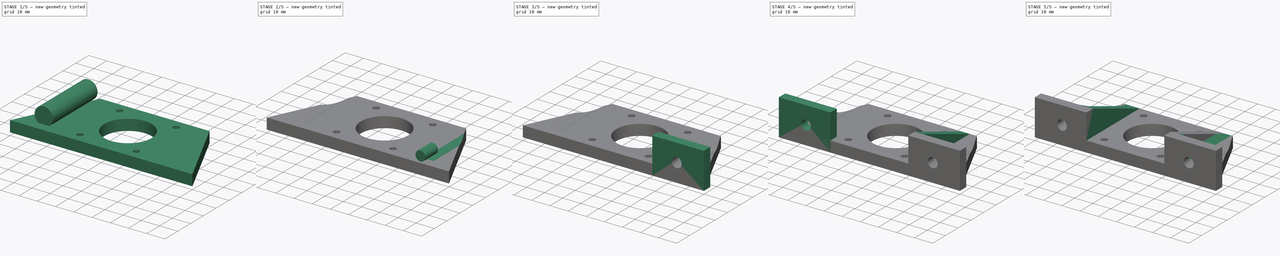
[diagram: build sequence overview — one tinted view per stage of 5, left to right]
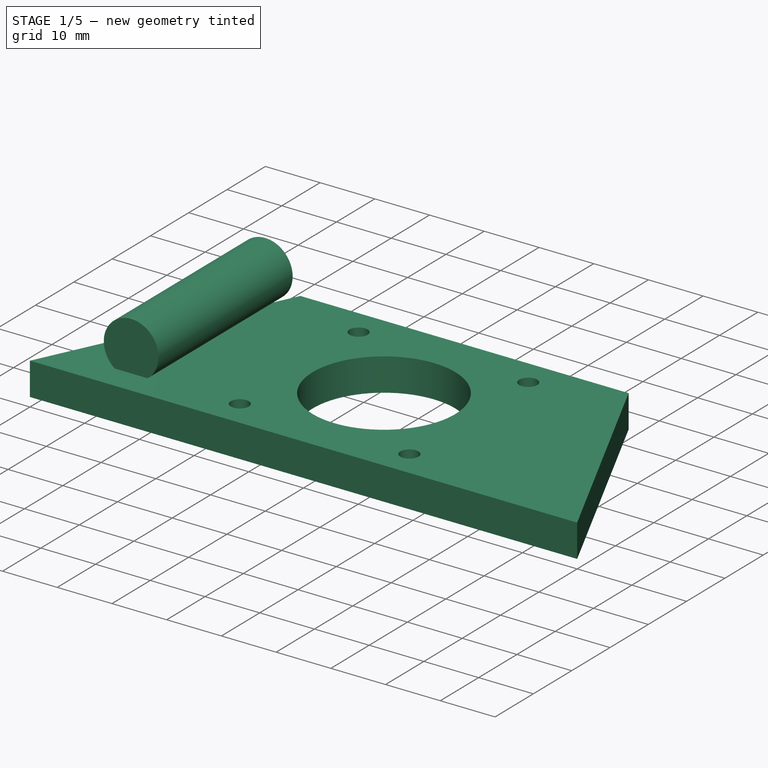
[diagram: stage 1 of 5 — iso view after this stage's code; geometry added in this stage tinted green]
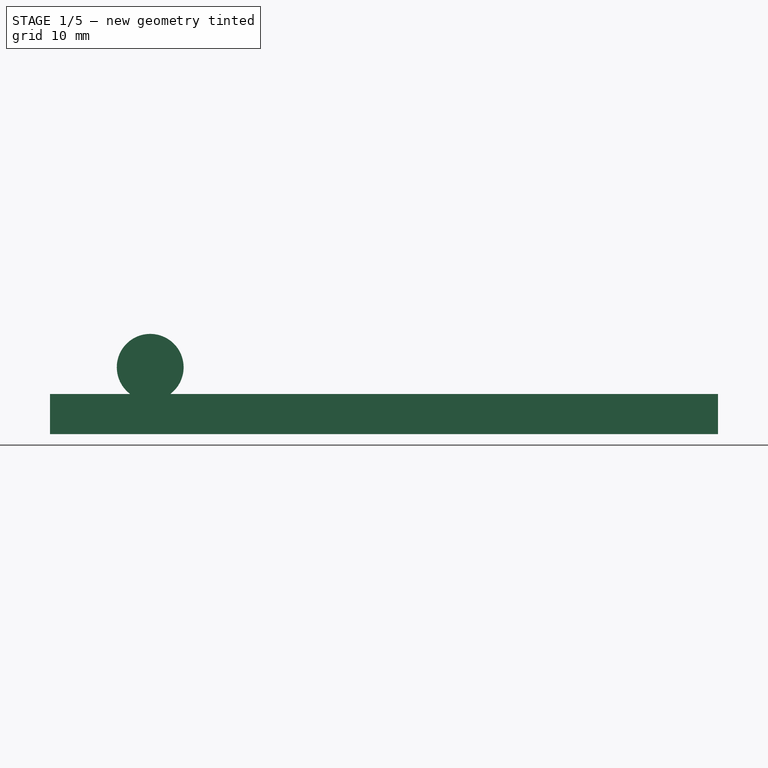
[diagram: stage 1 of 5 — front view after this stage's code; geometry added in this stage tinted green]
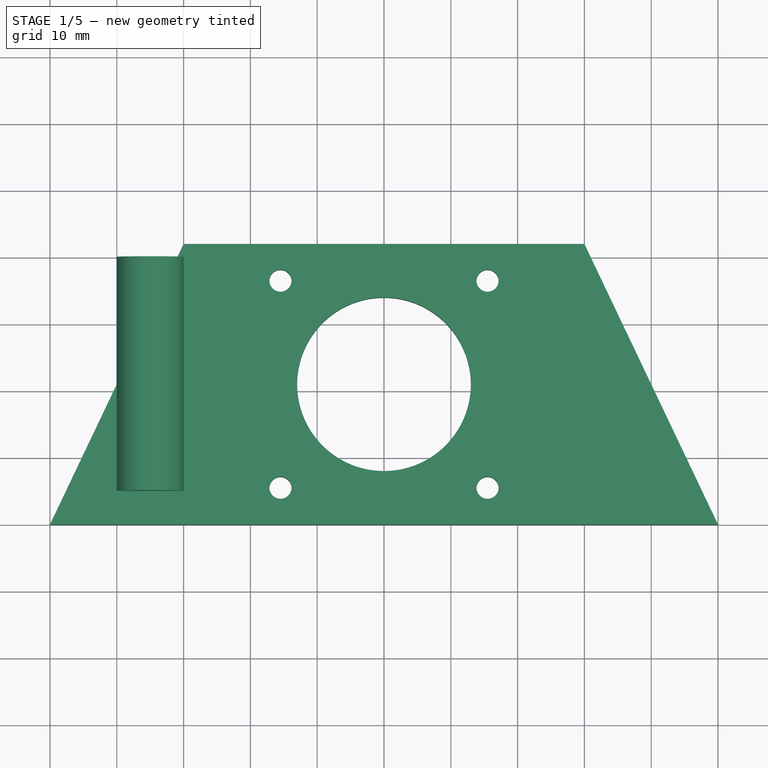
[diagram: stage 1 of 5 — top view after this stage's code; geometry added in this stage tinted green]
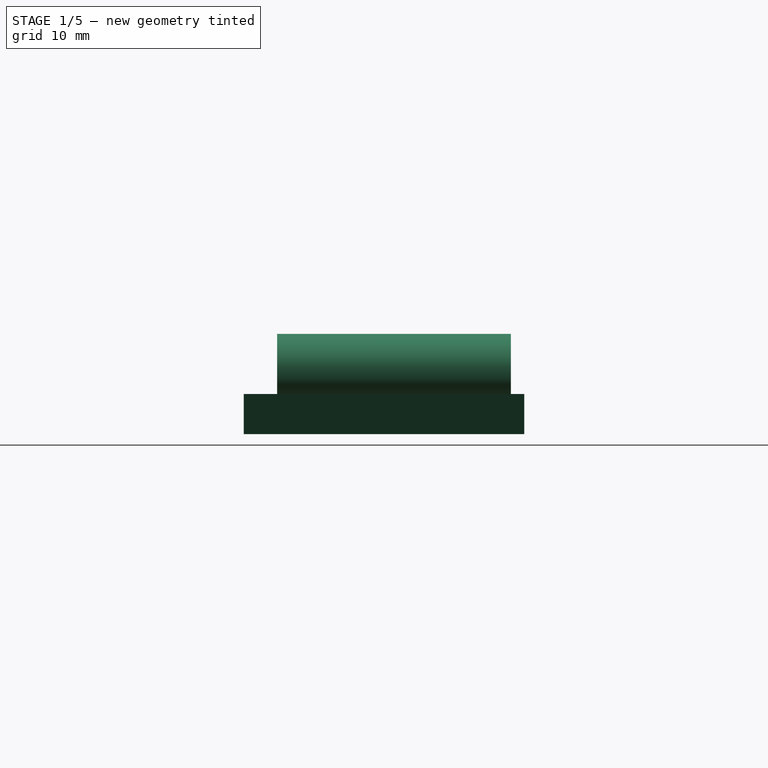
[diagram: stage 1 of 5 — right view after this stage's code; geometry added in this stage tinted green]
FCSTD DOCUMENT  (FreeCAD 0.16R6703 (Git))
Label: nema13_holder_v02
License: All rights reserved
LicenseURL: http://en.wikipedia.org/wiki/All_rights_reserved
objects: Part::FeaturePython×4, Sketcher::SketchObject×3, Part::Extrusion×3, Part::Cut×3, Part::MultiFuse×2, Part::Box×1, Part::Cylinder×1, Part::Chamfer×1
note: 18 computed .brp shape members not serialized (recipe doc carries the construction recipe); baked Part::Feature solids carry a one-line shape summary decoded from their .brp

FEATURE [Part::Cylinder] Cylinder  label="hueco_cabeza_tornillo"
  Angle = 360
  Height = 35
  Placement = pos=(35,5,10) rot=(-1,0,0;1.5708rad)
  Radius = 5
FEATURE [Part::FeaturePython] Clone003  label="hueco_cabeza_tornillo_2"  # Draft clone (typed FeaturePython)
  Objects = -> [Cylinder]
  Placement = pos=(-35,5,10) rot=(-1,0,0;1.5708rad)
  Scale = (1,1,1)
FEATURE [Part::Extrusion] Extrude  label="base_hueco_motor"
  Base = -> Sketch
  Dir = (0,0,6)
  Solid = true
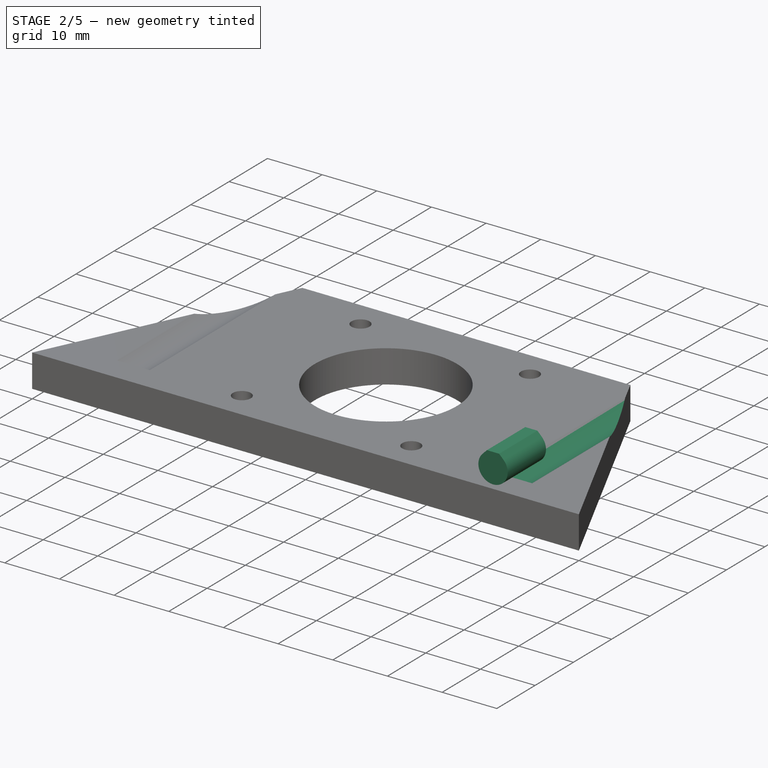
[diagram: stage 2 of 5 — iso view after this stage's code; geometry added in this stage tinted green]
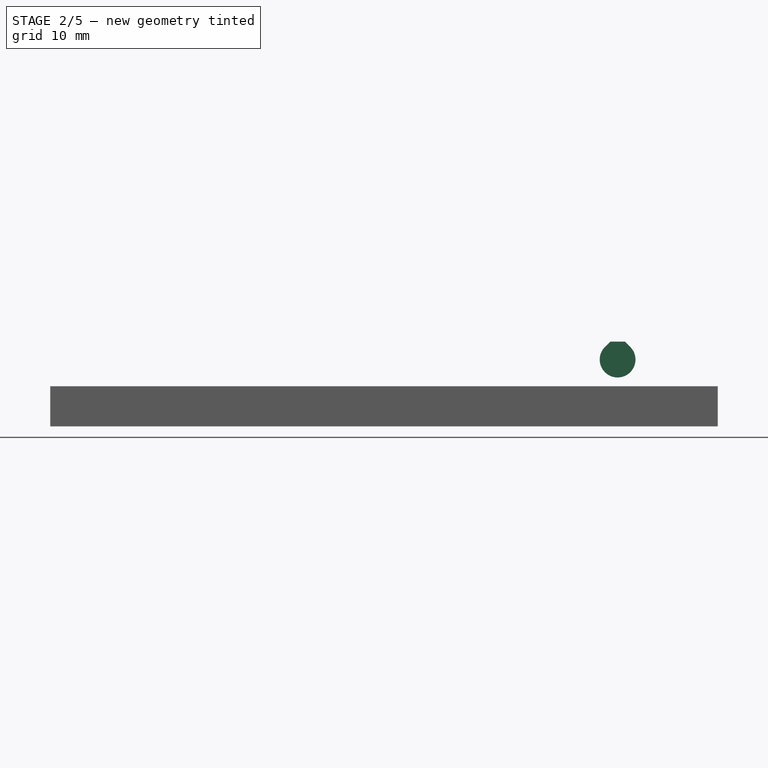
[diagram: stage 2 of 5 — front view after this stage's code; geometry added in this stage tinted green]
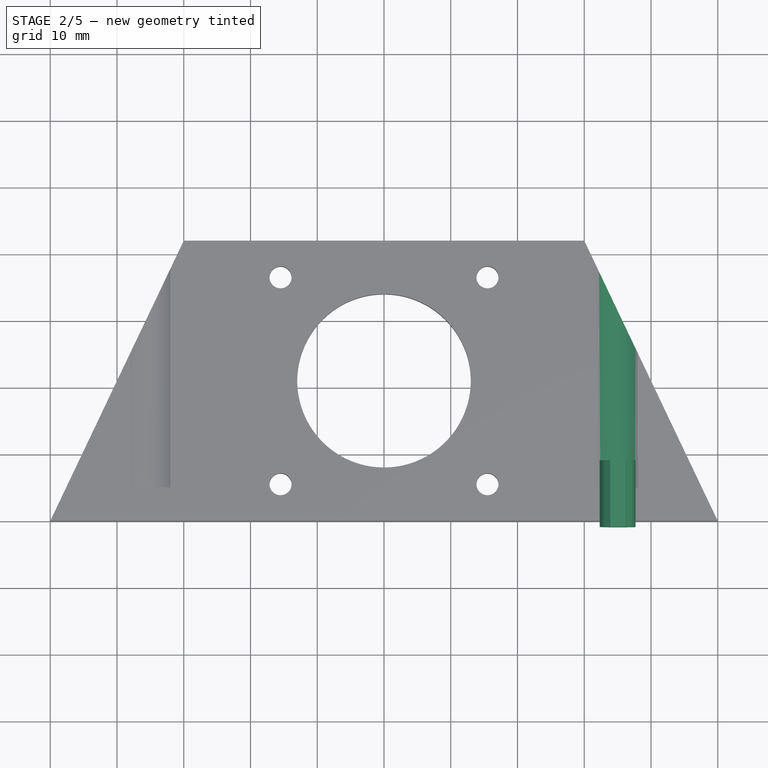
[diagram: stage 2 of 5 — top view after this stage's code; geometry added in this stage tinted green]
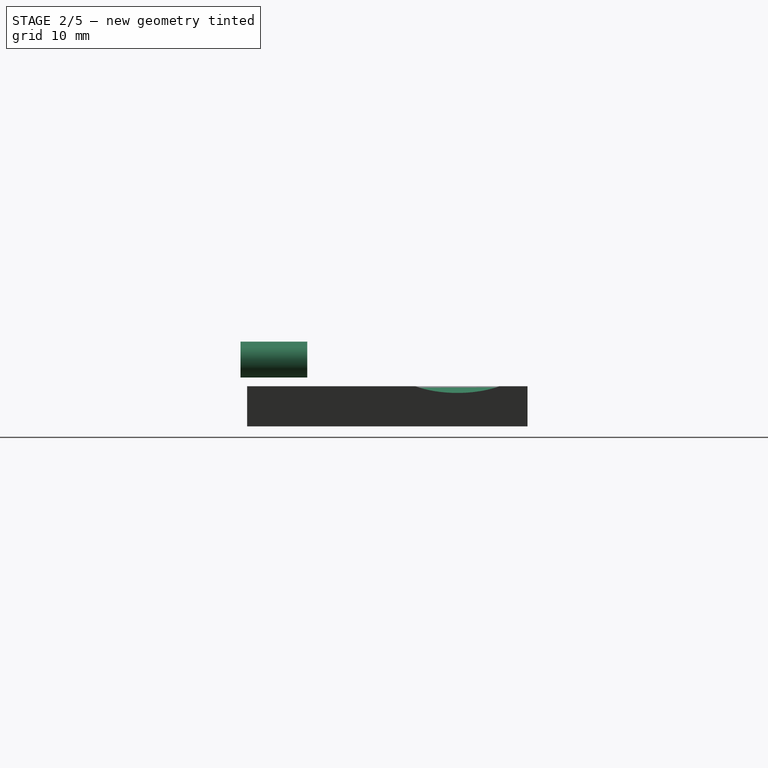
[diagram: stage 2 of 5 — right view after this stage's code; geometry added in this stage tinted green]
FEATURE [Sketcher::SketchObject] Sketch003  label="M5_repraphole"
  Placement = pos=(0,0,10) rot=(1,0,0;1.5708rad)
  sketch-geometry (4):
    g0: ArcOfCircle CenterX=0 CenterY=0 CenterZ=0 NormalX=0 NormalY=0 NormalZ=1 Radius=2.68 StartAngle=2.3562 EndAngle=7.06858
    g1: LineSegment StartX=-1.89506 StartY=1.89504 StartZ=0 EndX=-1.11009 EndY=2.68 EndZ=0
    g2: LineSegment StartX=1.11009 StartY=2.68 StartZ=0 EndX=1.89506 EndY=1.89504 EndZ=0
    g3: LineSegment StartX=-1.11009 StartY=2.68 StartZ=0 EndX=1.11009 EndY=2.68 EndZ=0
  constraints (12):
    c: Coincident(g0,g-1)
    c: Radius(g0) = 2.68  'M5'
    c: Angle(g-1,g1) = 0.785398
    c: Horizontal(g3)
    c: Coincident(g3,g1)
    c: Coincident(g3,g2)
    c: Coincident(g0,g1)
    c: Coincident(g0,g2)
    c: DistanceY(g-1,g1) = 2.68  'M5radio'
    c: Angle(g2,g-1) = 0.785398
    c: Tangent(g2,g0)
    c: Tangent(g1,g0)
FEATURE [Part::Extrusion] Extrude002  label="M5_repraphole_extrusion"
  Base = -> Sketch003
  Dir = (0,10,0)
  Placement = pos=(35,-1,0) rot=(0,0,1;0rad)
  Solid = true
FEATURE [Part::MultiFuse] Fusion  label="huecos_cabeza_tornillo"
  Shapes = -> [Clone003,Cylinder]
FEATURE [Part::Cut] Cut002  label="base_hueco_motor_con_cabeza_tornillo"
  Base = -> Extrude
  Tool = -> Fusion
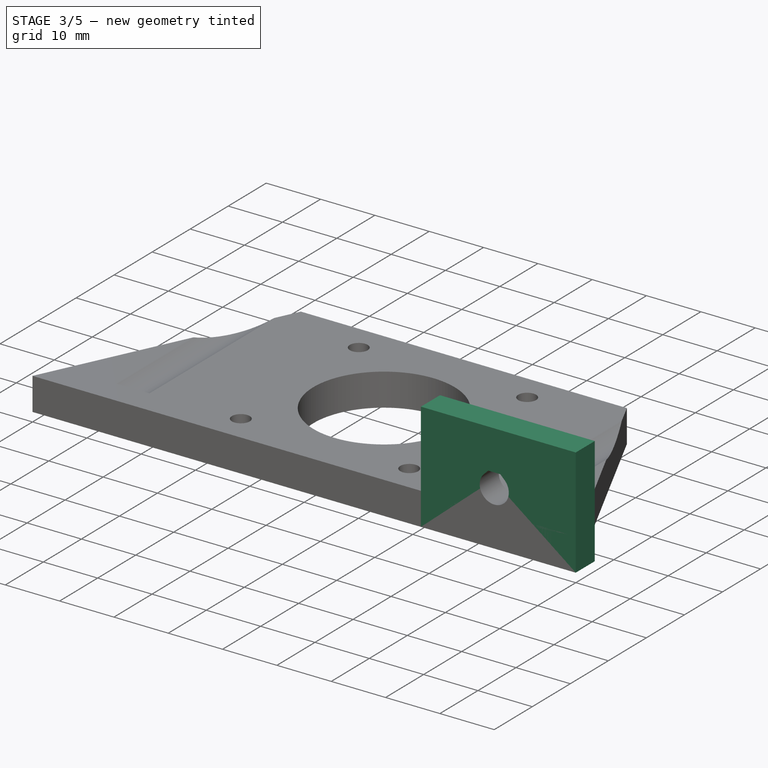
[diagram: stage 3 of 5 — iso view after this stage's code; geometry added in this stage tinted green]
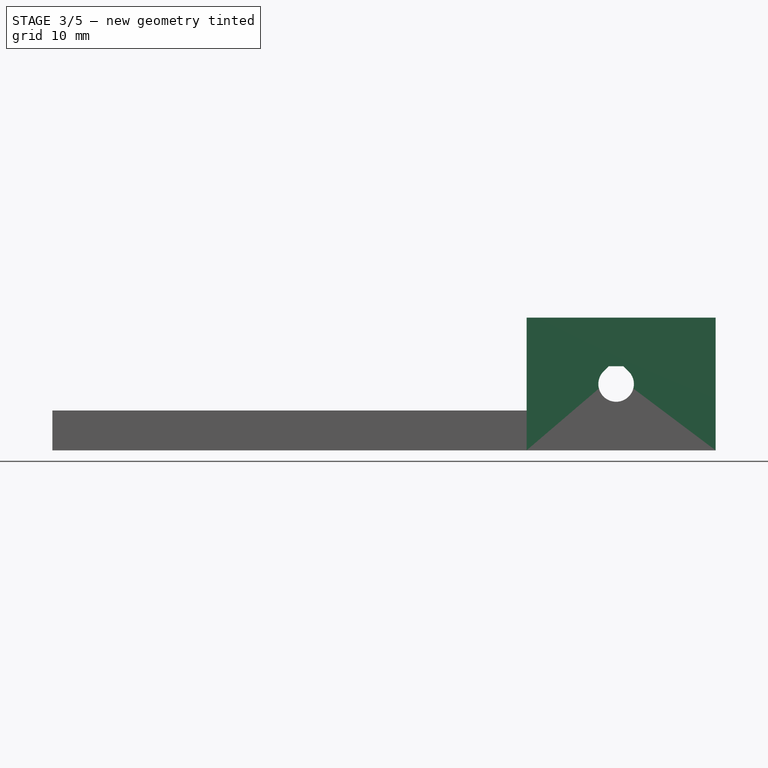
[diagram: stage 3 of 5 — front view after this stage's code; geometry added in this stage tinted green]
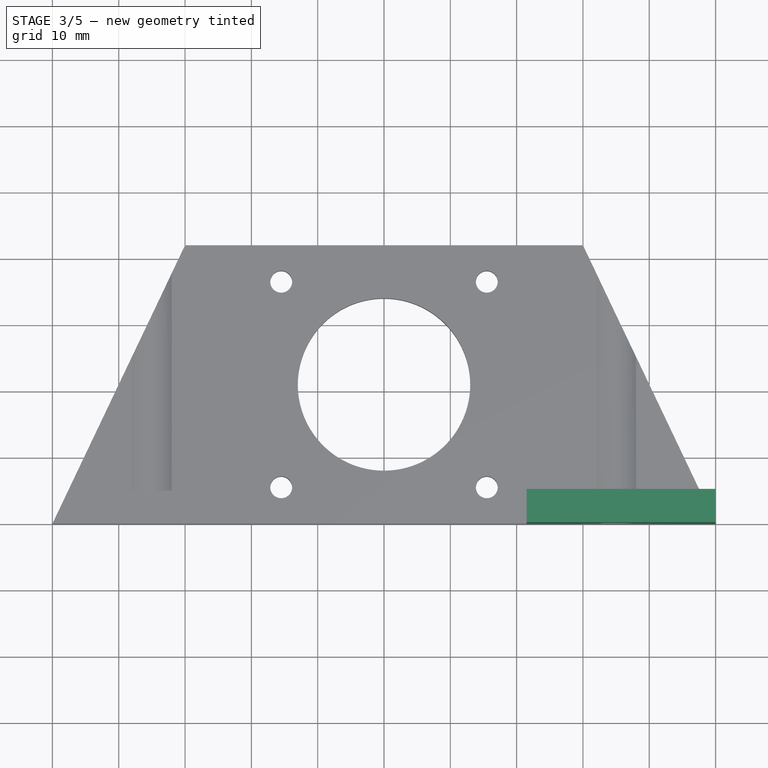
[diagram: stage 3 of 5 — top view after this stage's code; geometry added in this stage tinted green]
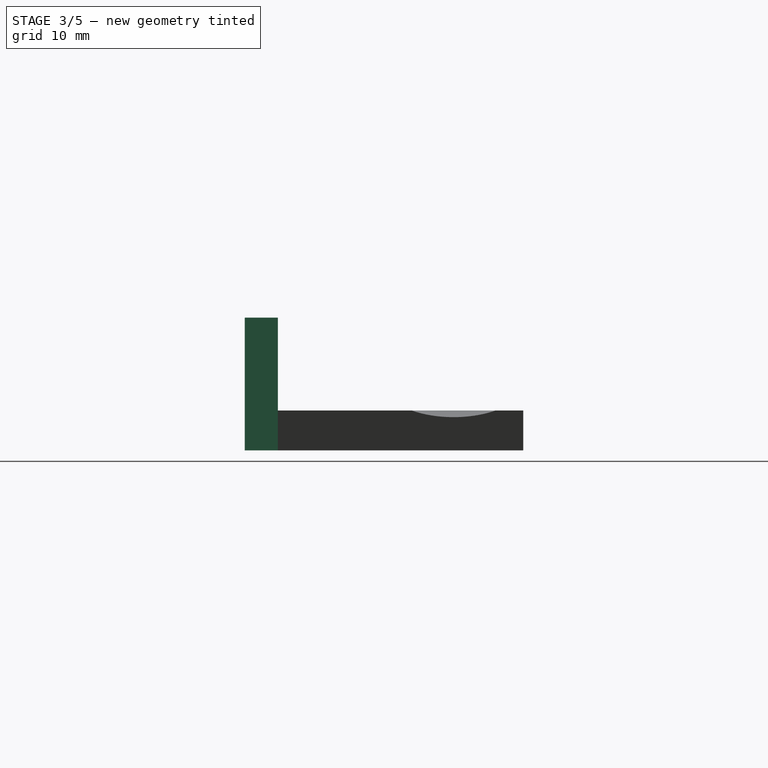
[diagram: stage 3 of 5 — right view after this stage's code; geometry added in this stage tinted green]
FEATURE [Sketcher::SketchObject] Sketch  label="base_hueco_motor_sketch"
  sketch-geometry (10):
    g0: LineSegment StartX=-30 StartY=42 StartZ=0 EndX=30 EndY=42 EndZ=0
    g1: LineSegment StartX=30 StartY=42 StartZ=0 EndX=50 EndY=0 EndZ=0
    g2: LineSegment StartX=50 StartY=0 StartZ=0 EndX=-50 EndY=0 EndZ=0
    g3: LineSegment StartX=-50 StartY=0 StartZ=0 EndX=-30 EndY=42 EndZ=0
    g4: Circle CenterX=-15.5 CenterY=36.5 CenterZ=0 NormalX=0 NormalY=0 NormalZ=1 Radius=1.65
    g5: Circle CenterX=15.5 CenterY=36.5 CenterZ=0 NormalX=0 NormalY=0 NormalZ=1 Radius=1.65
    g6: Circle CenterX=-15.5 CenterY=5.5 CenterZ=0 NormalX=0 NormalY=0 NormalZ=1 Radius=1.65
    g7: Circle CenterX=15.5 CenterY=5.5 CenterZ=0 NormalX=0 NormalY=0 NormalZ=1 Radius=1.65
    g8: GeomPoint [constr] X=0 Y=21 Z=0
    g9: Circle CenterX=0 CenterY=21 CenterZ=0 NormalX=0 NormalY=0 NormalZ=1 Radius=13
  constraints (28):
    c: Horizontal(g0)
    c: Coincident(g0,g1)
    c: Coincident(g1,g2)
    c: Horizontal(g2)
    c: Coincident(g2,g3)
    c: Coincident(g3,g0)
    c: DistanceY(g-1,g2) = 0
    c: DistanceX(g0,g-1) = 30
    c: DistanceX(g-1,g0) = 30
    c: DistanceX(g-1,g1) = 50
    c: DistanceX(g2,g-1) = 50
    c: DistanceY(g-1,g0) = 42
    c: Radius(g4) = 1.65  'M3'
    c: Equal(g4,g5)
    c: DistanceY(g4,g5) = 0
    c: DistanceX(g4,g5) = 31
    c: Equal(g4,g6)
    c: Equal(g7,g4)
    c: DistanceY(g6,g7) = 0
    c: DistanceX(g5,g7) = 0
    c: DistanceX(g6,g4) = 0
    c: DistanceY(g7,g5) = 31
    c: DistanceY(g-1,g8) = 21  'centro'
    c: DistanceX(g8,g-1) = 0
    c: DistanceX(g-1,g5) = 15.5
    c: DistanceY(g8,g5) = 15.5
    c: Coincident(g9,g8)
    c: Radius(g9) = 13
FEATURE [Part::Box] Box  label="soporte_vertical"
  Height = 20
  Length = 28.5
  Placement = pos=(-50,0,0) rot=(0,0,1;0rad)
  Width = 5
FEATURE [Part::FeaturePython] Clone  label="soporte_vertical_2"  # Draft clone (typed FeaturePython)
  Objects = -> [Box]
  Placement = pos=(50,5,0) rot=(0,0,1;3.14159rad)
  Scale = (1,1,1)
FEATURE [Part::Cut] Cut001  label="soporte_vertical_contaladro_1"
  Base = -> Clone
  Tool = -> Extrude002
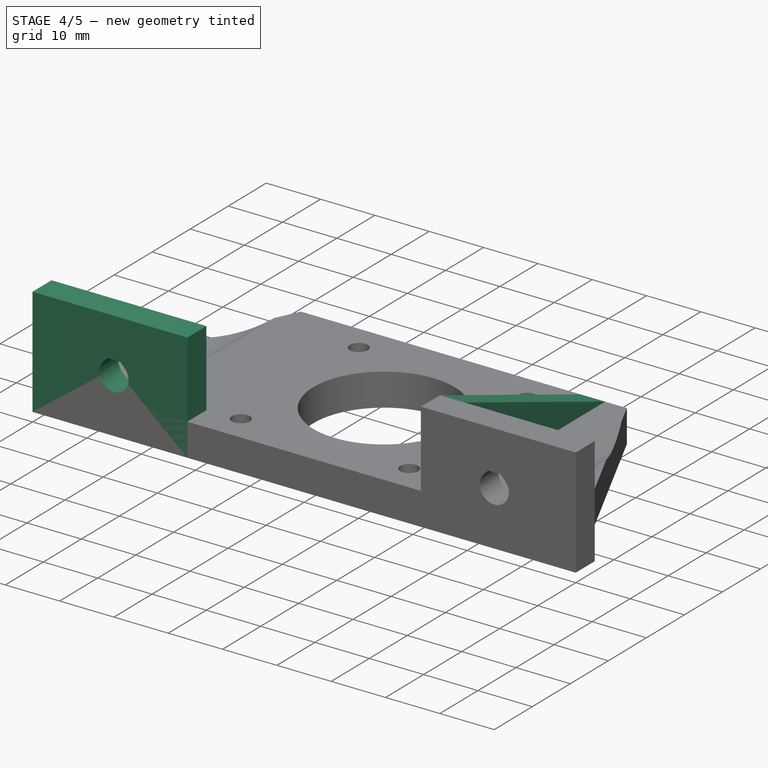
[diagram: stage 4 of 5 — iso view after this stage's code; geometry added in this stage tinted green]
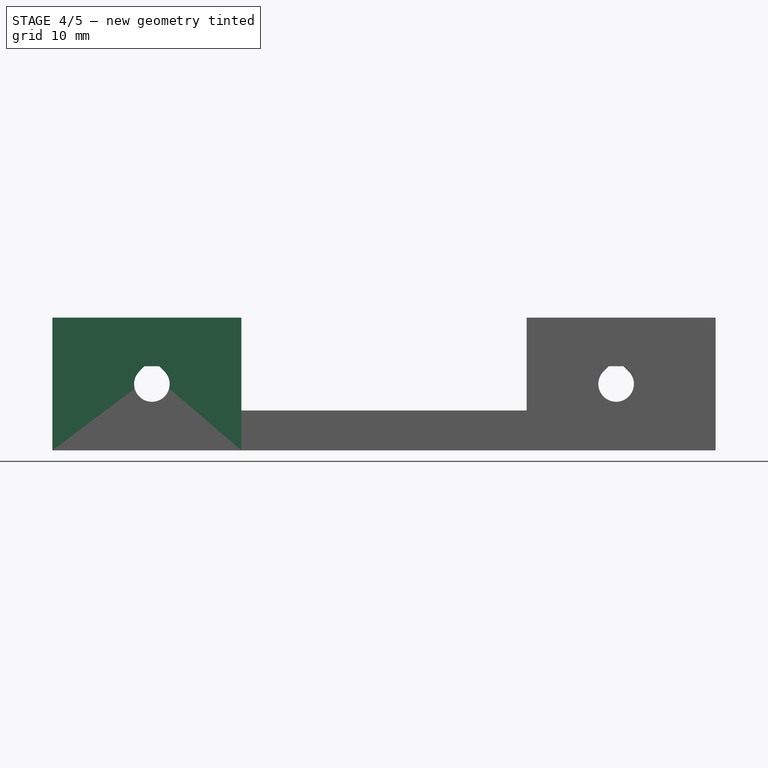
[diagram: stage 4 of 5 — front view after this stage's code; geometry added in this stage tinted green]
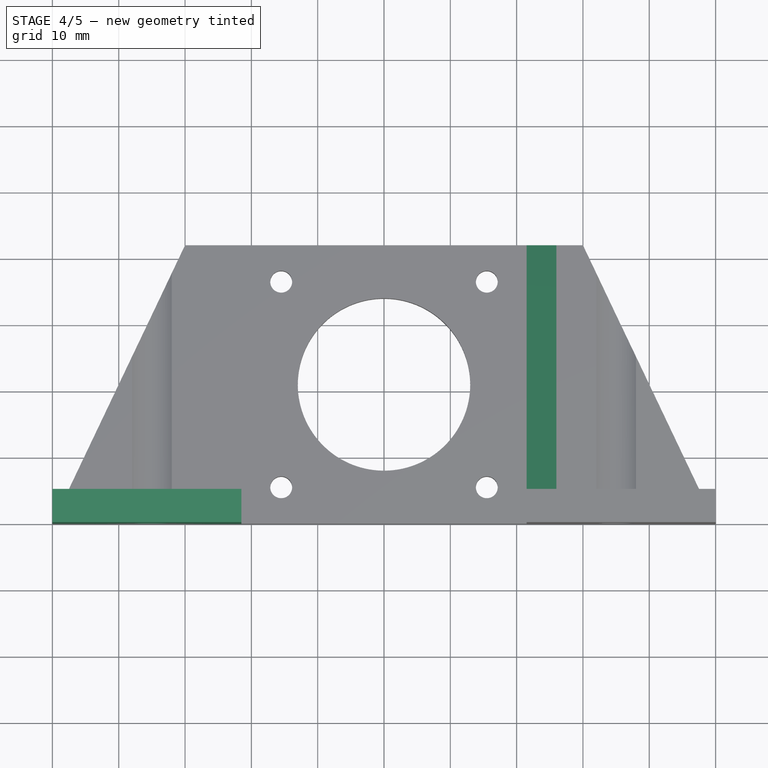
[diagram: stage 4 of 5 — top view after this stage's code; geometry added in this stage tinted green]
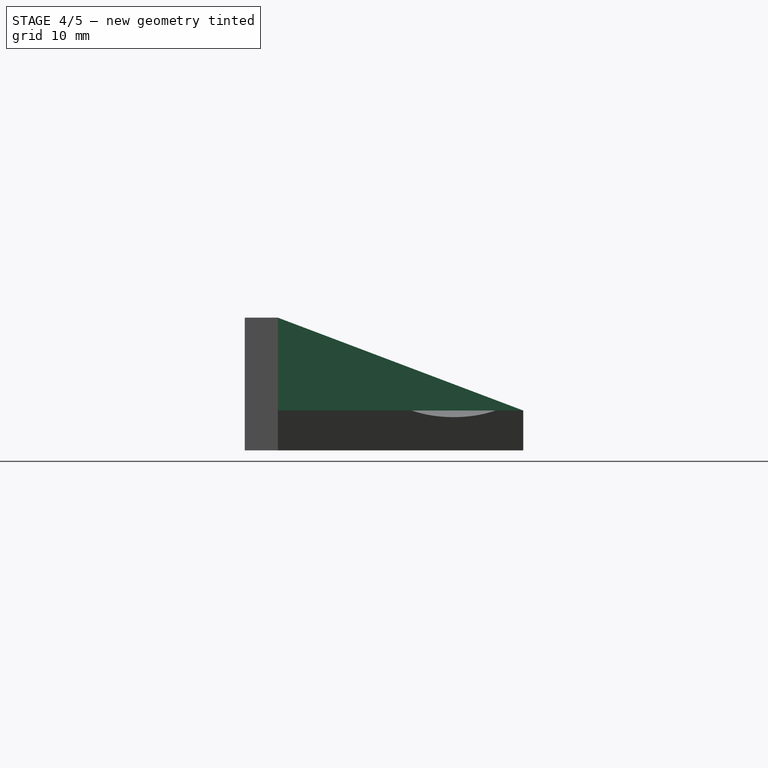
[diagram: stage 4 of 5 — right view after this stage's code; geometry added in this stage tinted green]
FEATURE [Sketcher::SketchObject] Sketch002  label="sketch_refuerzo_triangular"
  Placement = pos=(0,0,0) rot=(0.57735,0.57735,0.57735;2.0944rad)
  sketch-geometry (3):
    g0: LineSegment StartX=5 StartY=20 StartZ=0 EndX=42 EndY=6 EndZ=0
    g1: LineSegment StartX=42 StartY=6 StartZ=0 EndX=5 EndY=6 EndZ=0
    g2: LineSegment StartX=5 StartY=6 StartZ=0 EndX=5 EndY=20 EndZ=0
  constraints (9):
    c: Coincident(g0,g1)
    c: Horizontal(g1)
    c: Coincident(g1,g2)
    c: Coincident(g0,g2)
    c: Vertical(g2)
    c: DistanceX(g1,g0) = 37
    c: DistanceX(g-1,g1) = 5
    c: DistanceY(g-1,g1) = 6
    c: DistanceY(g-1,g0) = 20
FEATURE [Part::Extrusion] Extrude001  label="refuerzo_triangular"
  Base = -> Sketch002
  Dir = (4.5,0,0)
  Placement = pos=(21.5,0,0) rot=(0,0,1;0rad)
  Solid = true
FEATURE [Part::FeaturePython] Clone002  label="M5_repraphole_extrusion_2"  # Draft clone (typed FeaturePython)
  Objects = -> [Extrude002]
  Placement = pos=(-35,-1,0) rot=(0,0,1;0rad)
  Scale = (1,1,1)
FEATURE [Part::Cut] Cut  label="soporte_vertical_contaladro_2"
  Base = -> Box
  Tool = -> Clone002
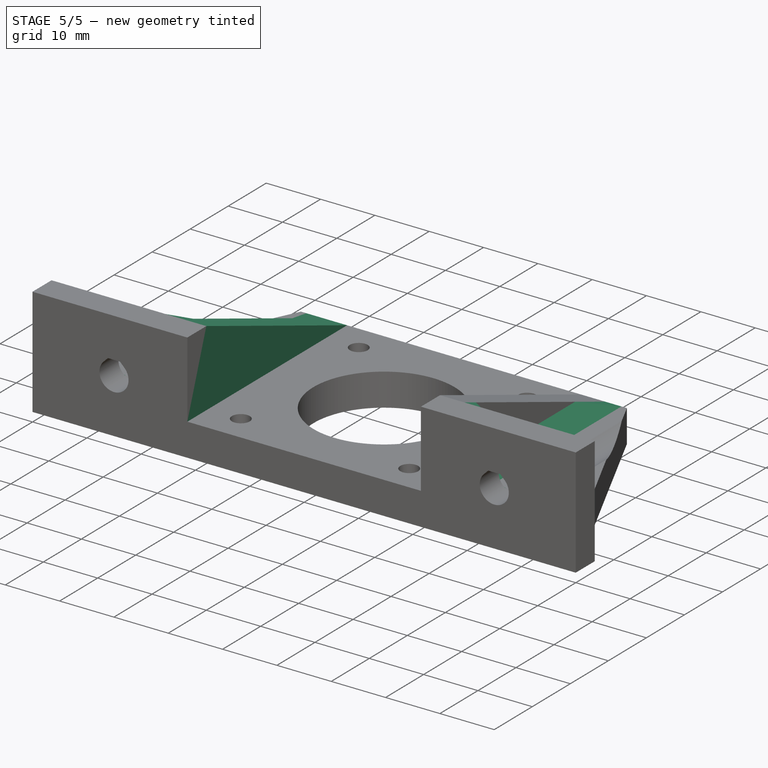
[diagram: stage 5 of 5 — iso view after this stage's code; geometry added in this stage tinted green]
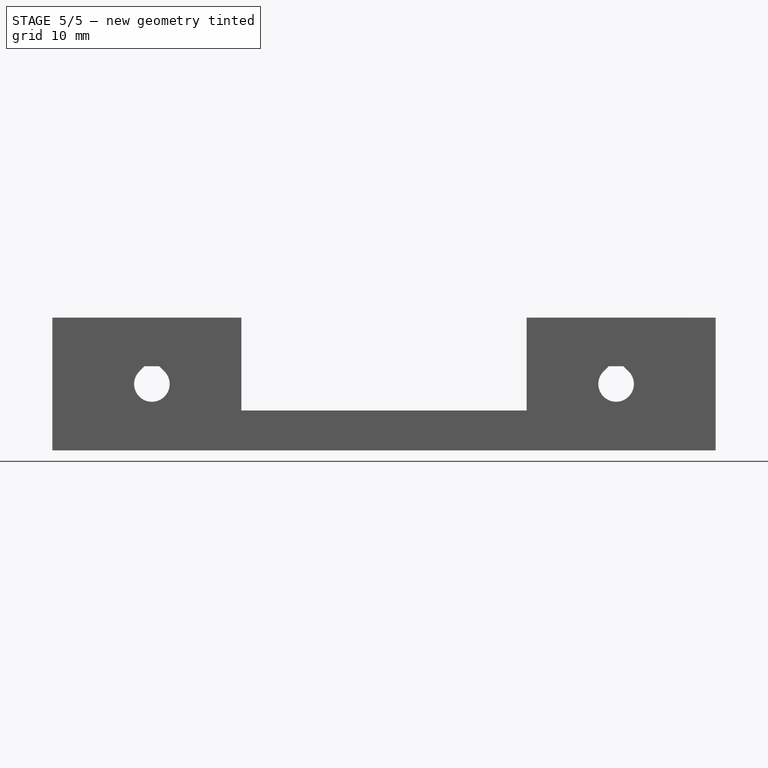
[diagram: stage 5 of 5 — front view after this stage's code; geometry added in this stage tinted green]
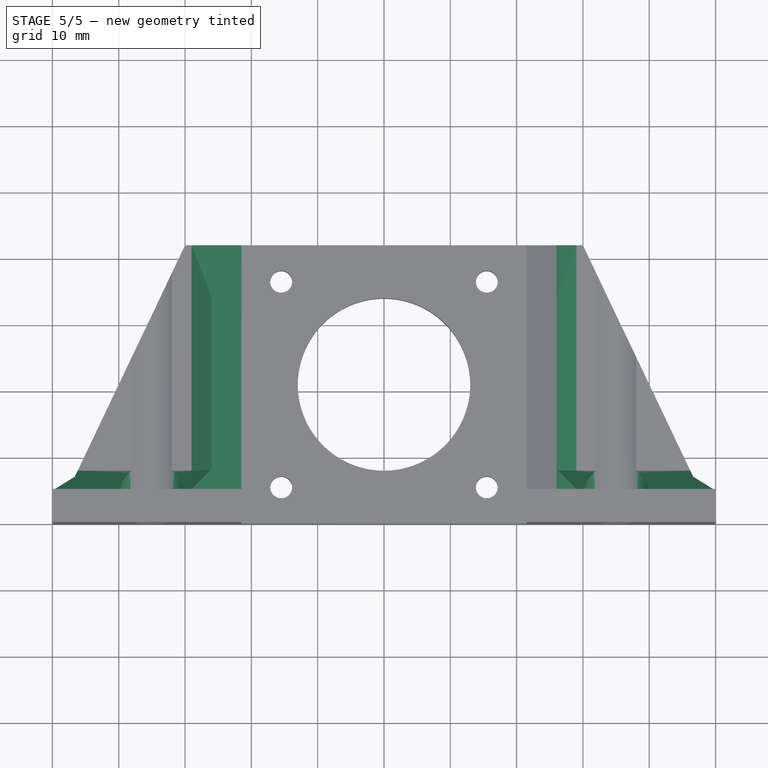
[diagram: stage 5 of 5 — top view after this stage's code; geometry added in this stage tinted green]
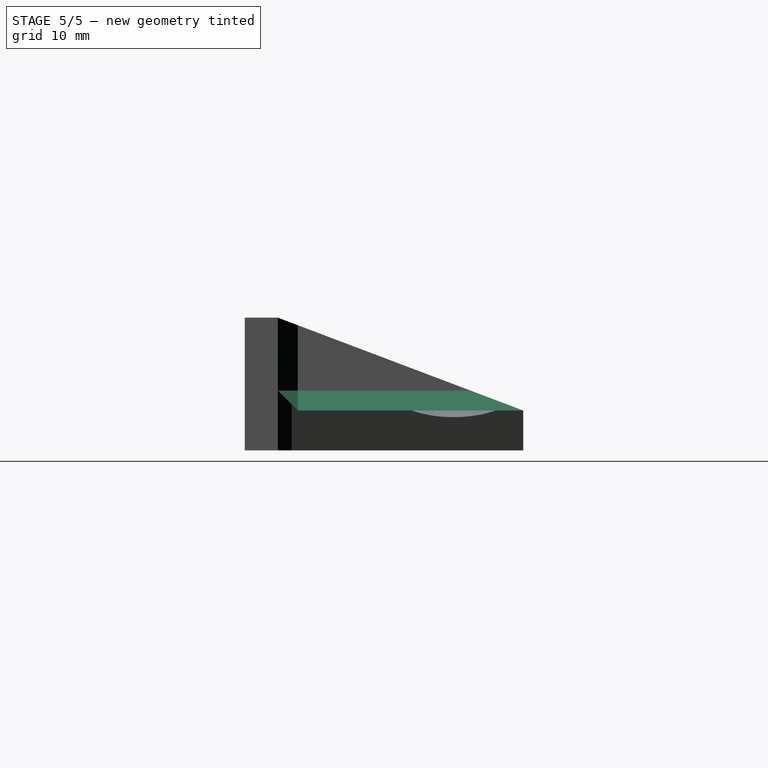
[diagram: stage 5 of 5 — right view after this stage's code; geometry added in this stage tinted green]
FEATURE [Part::FeaturePython] Clone001  label="refuerzo_triangular_2"  # Draft clone (typed FeaturePython)
  Objects = -> [Extrude001]
  Placement = pos=(-26,0,0) rot=(0,0,1;0rad)
  Scale = (1,1,1)
FEATURE [Part::MultiFuse] Fusion001  label="nema17_holder"
  Shapes = -> [Extrude001,Cut,Cut001,Cut002,Clone001]
FEATURE [Part::Chamfer] Chamfer  label="nema17_holder_chaflan"
  Base = -> Fusion001
  Edges = 10 edges: [Edge12 r=3,Edge13 r=3,Edge15 r=2.3,Edge21 r=3,Edge24 r=3,Edge53 r=2.3,Edge54 r=3,Edge55 r=3,Edge66 r=3,Edge67 r=3]
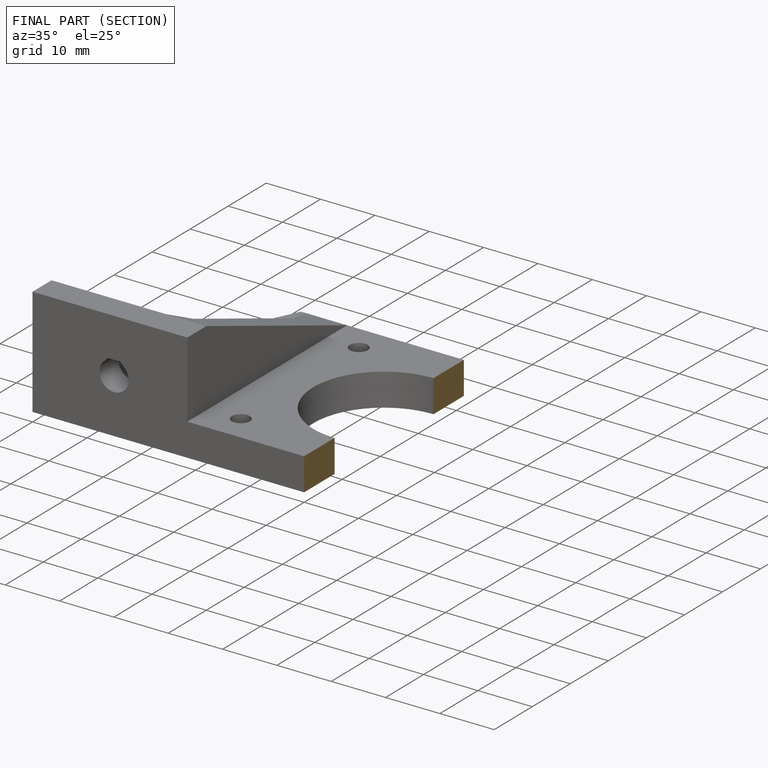
[diagram: finished part — half-section view (interior)]
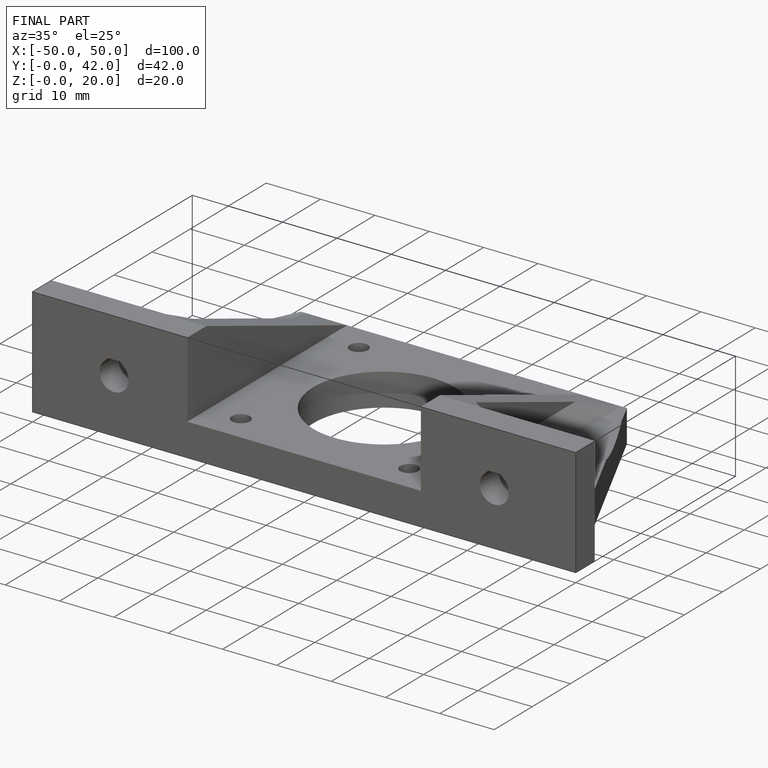
[diagram: finished part — iso view with bounding-box wireframe]
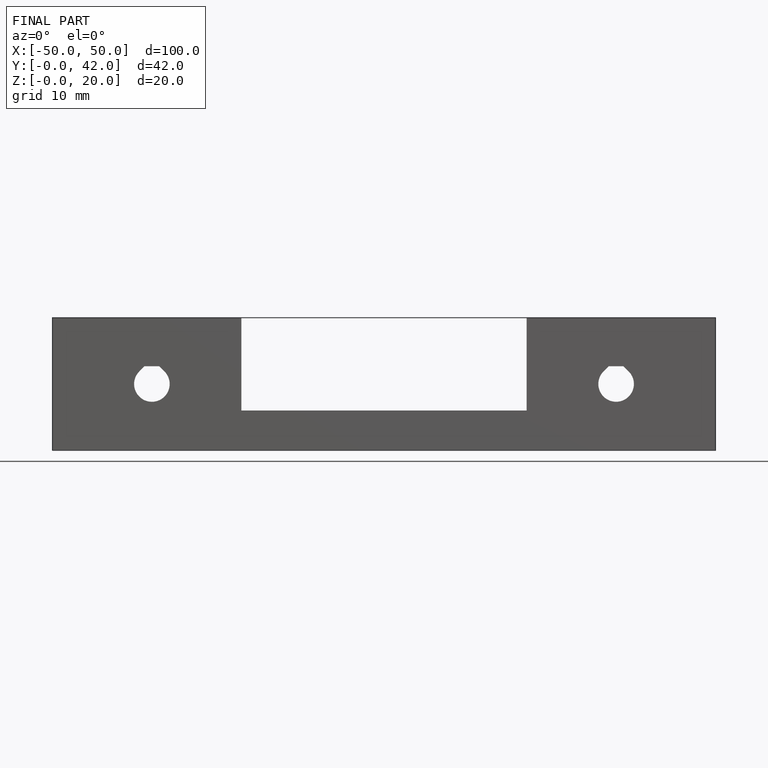
[diagram: finished part — front view with bounding-box wireframe]
